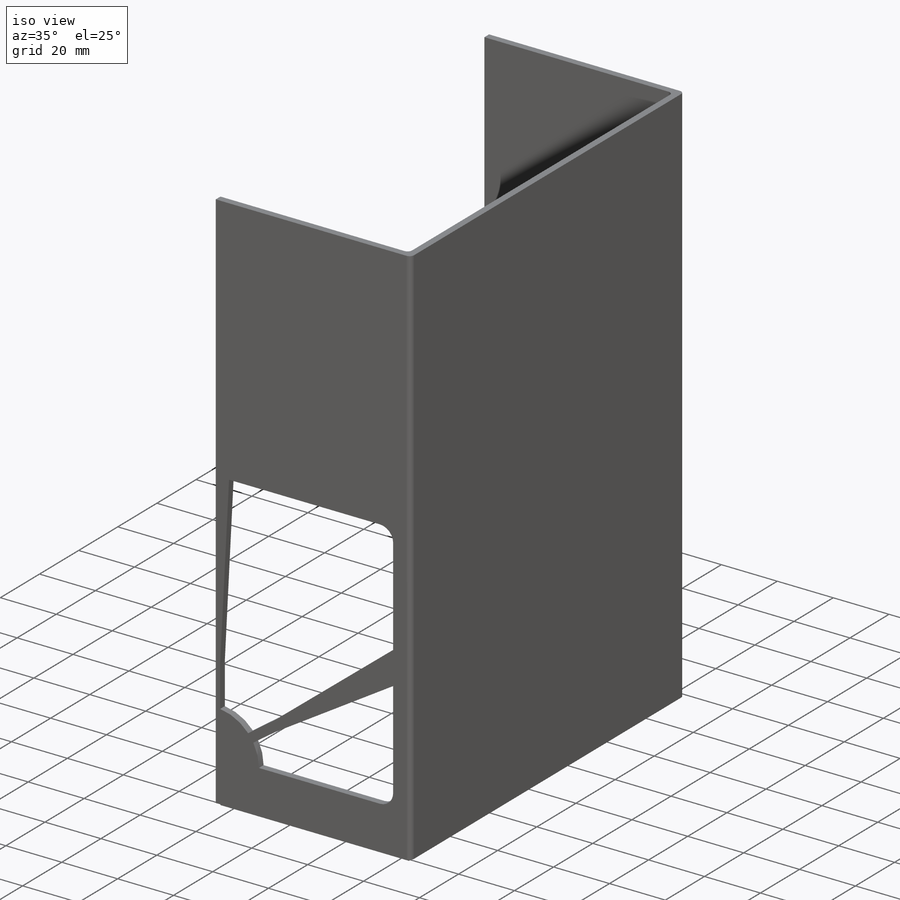
[diagram: iso view]
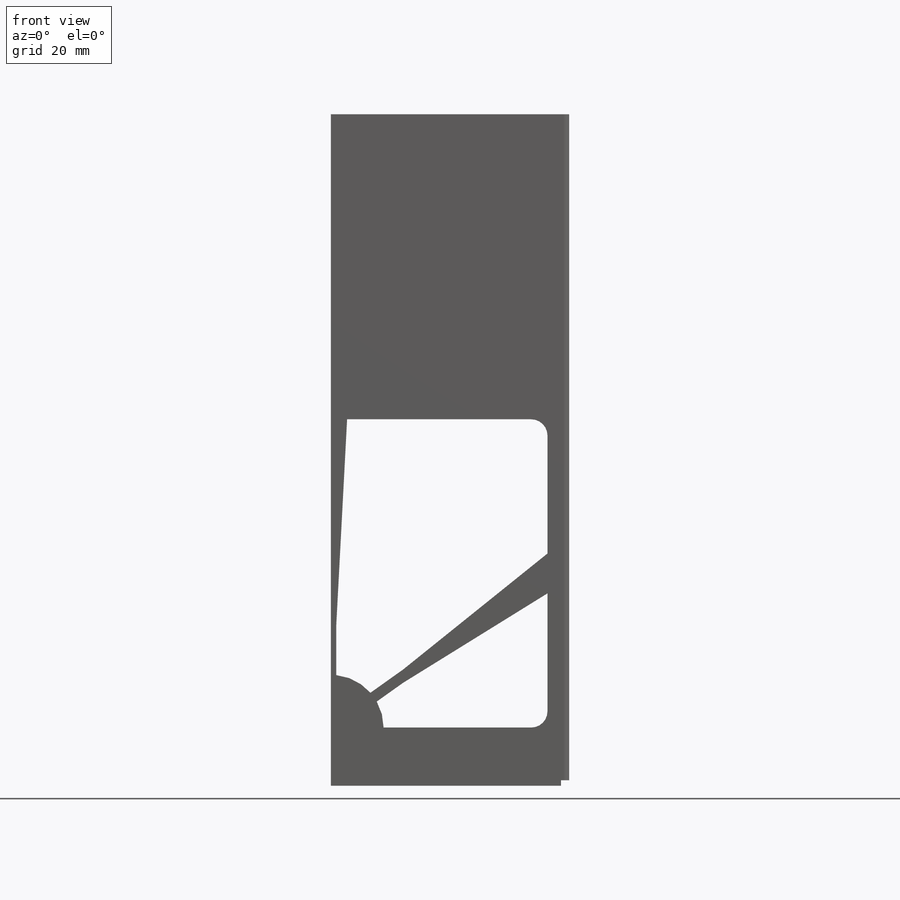
[diagram: front view]
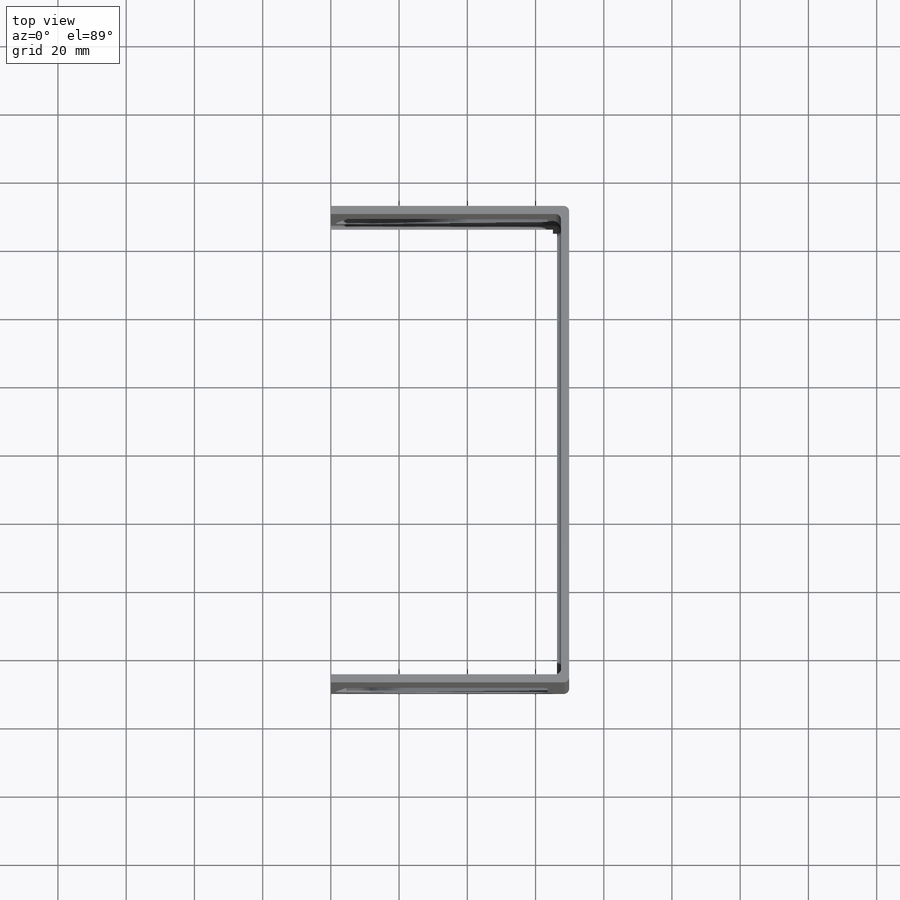
[diagram: top view]
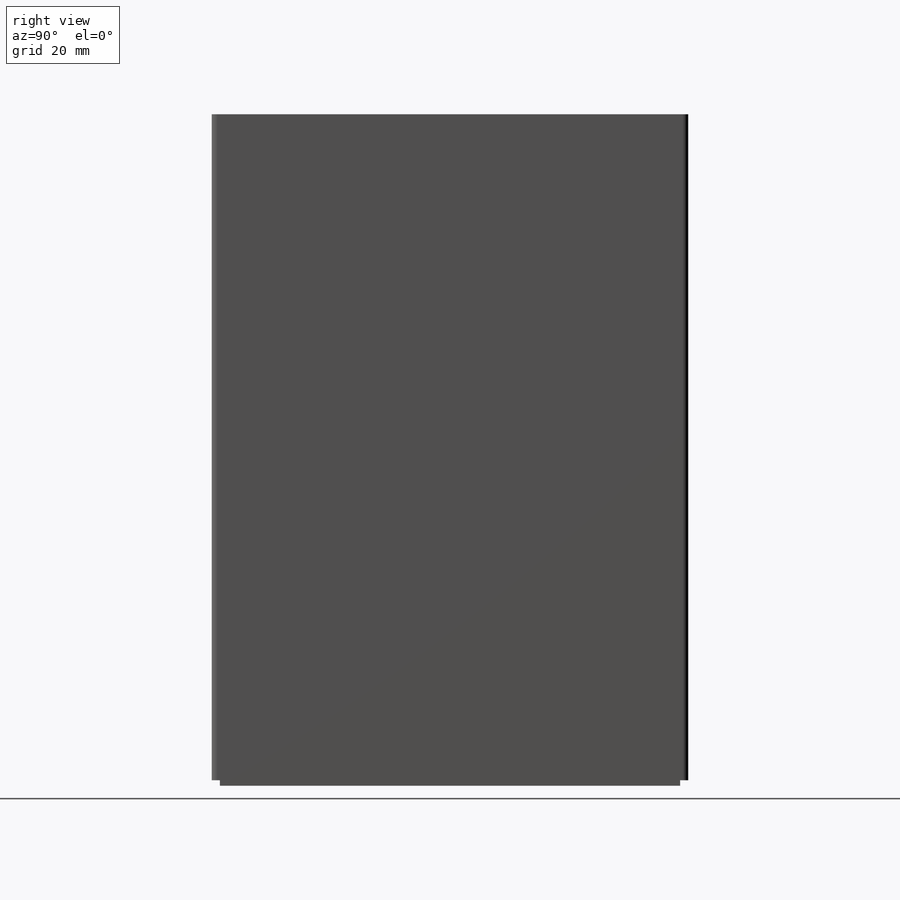
[diagram: right view]
SOLIDWORKS PART (.sldprt)
format: sldprt  version: not decoded by parser v0  size: 336,384 bytes
history: native  units: mm
features: sketch x4, fillet x3, extrude x2, cut_extrude x2, material x1 (+12 scaffold rows collapsed)
feature tree (24):
  scaffold x12  (default folders/planes/origin — collapsed)
  material  "Material <not specified>"
  sketch  "Sketch1"  dims[D1=139.7mm D2=139.7mm D3=~2.38125mm D4=~2.38125mm]
  extrude  "Boss-Extrude1"  Depth=195.2375mm
  sketch  "Sketch2"  dims[c1.D1=~15.46098mm c1.D2=~105.82148mm c1.D3=6.35mm c1.D4=6.35mm c1.D5=3.175mm c1.D6=3.175mm c1.D7=3.175mm c1.D8=3.175mm c1.D9=3.175mm c1.D10=1.5875mm c1.D11=1.5875mm c1.D12=1.5875mm c1.D13=1.5875mm c1.D14=3.175mm c1.D15=3.175mm c1.D16=4.7625mm c1.D17=4.7625mm c1.D18=4.7625mm c1.D19=4.7625mm c2.D14=4.7625mm c2.D15=4.7625mm c2.D20=4.7625mm c2.D21=4.7625mm c2.D22=4.7625mm c2.D23=4.7625mm]
  cut_extrude  "Cut-Extrude1"  [1 undecoded]
  sketch  "Sketch3"
  cut_extrude  "Cut-Extrude2"  [1 undecoded]
  fillet  "Fillet1"  Radius=4.7625mm
  sketch  "Sketch4"  dims[D1=~2.38125mm D2=~2.38125mm D3=~2.38125mm D4=~2.38125mm]
  extrude  "Boss-Extrude2"  Depth=3.175mm
  fillet  "Fillet2"  Radius=1.5875mm
  fillet  "Fillet3"  Radius=1.5875mm
decode coverage: 8 of 11 modeling features carry decoded parameters
note: ~ marks probable driven/reference dimensions
note: 2 parameter values undecoded
note: suppression state not decoded; provenance and decode notes live in map.json
